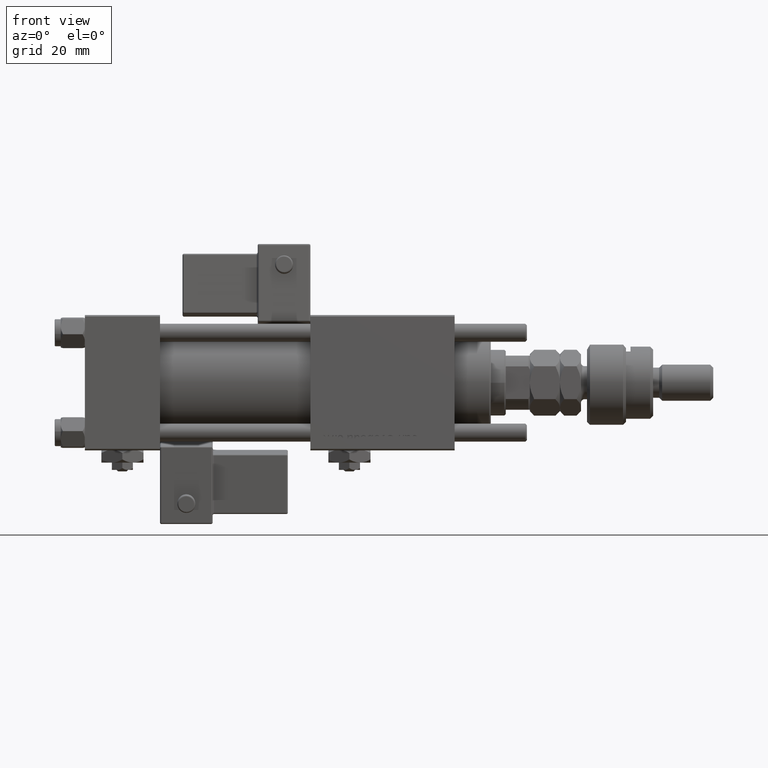
[diagram: clean part render]
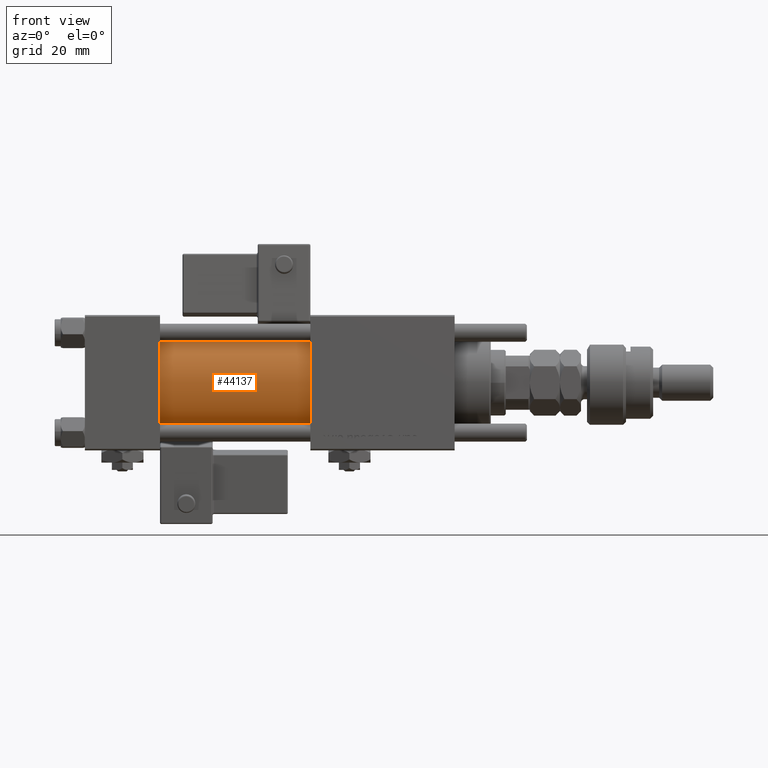
[diagram: same view with one face highlighted and labeled with its STEP entity id]
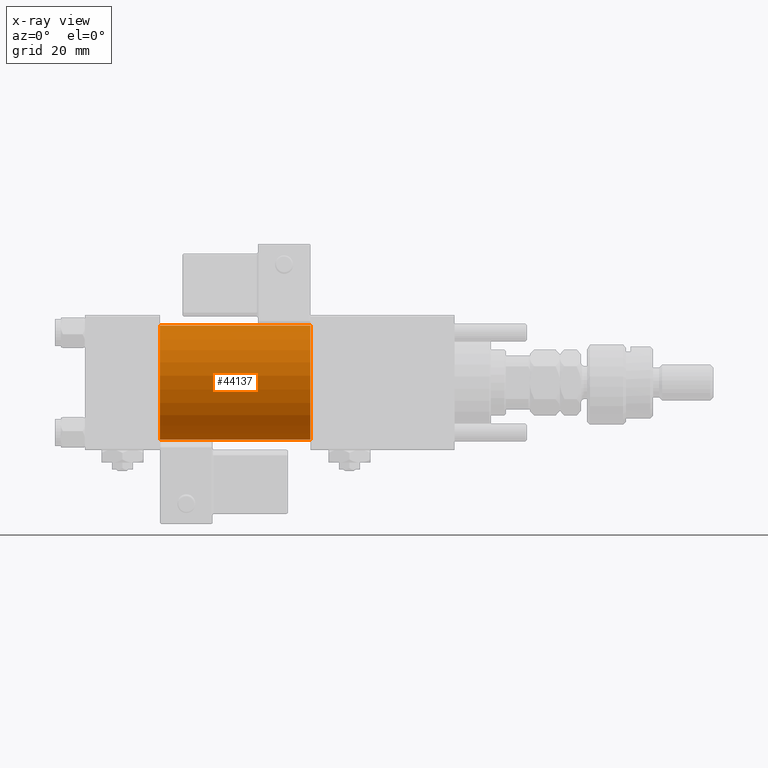
[diagram: x-ray of the same camera — body ghosted, the highlighted face saturated]
A machine part, front view. The second image highlights one B-rep face of the part: STEP entity #44137.
The next image is the same camera in x-ray: the body ghosted, the highlighted face saturated — about 0% of this face is hidden behind the body in this view.
In plain terms, the highlighted cylindrical surface (partial cylindrical patch) has radius 19 mm, axis along (-1, -0, -0).
Its self-contained STEP definition (entity closure, byte-faithful):
#1574 = DIRECTION ( 'NONE',  ( 0.000000000000000000, 0.000000000000000000, -1.000000000000000000 ) ) ;
#2967 = DIRECTION ( 'NONE',  ( -1.000000000000000000, -0.000000000000000000, -0.000000000000000000 ) ) ;
#3882 = LINE ( 'NONE', #57533, #42287 ) ;
#4429 = ORIENTED_EDGE ( 'NONE', *, *, #54163, .T. ) ;
#6085 = CARTESIAN_POINT ( 'NONE',  ( 25.00000000000000000, -2.752562955852396712E-16, -19.00000000000000000 ) ) ;
#7186 = CARTESIAN_POINT ( 'NONE',  ( 75.00000000000001421, -2.602085213965210642E-15, 19.00000000000000000 ) ) ;
#7500 = CYLINDRICAL_SURFACE ( 'NONE', #7809, 19.00000000000000000 ) ;
#7726 = CARTESIAN_POINT ( 'NONE',  ( 75.00000000000001421, -2.602085213965210642E-15, 0.000000000000000000 ) ) ;
#7809 = AXIS2_PLACEMENT_3D ( 'NONE', #27196, #57876, #28139 ) ;
#8727 = DIRECTION ( 'NONE',  ( -1.000000000000000000, -0.000000000000000000, -0.000000000000000000 ) ) ;
#10953 = EDGE_CURVE ( 'NONE', #32318, #48181, #18121, .T. ) ;
#11223 = DIRECTION ( 'NONE',  ( 1.000000000000000000, -0.000000000000000000, 0.000000000000000000 ) ) ;
#16496 = VERTEX_POINT ( 'NONE', #6085 ) ;
#16767 = CARTESIAN_POINT ( 'NONE',  ( 75.00000000000001421, -2.602085213965210642E-15, 19.00000000000000000 ) ) ;
#17923 = ORIENTED_EDGE ( 'NONE', *, *, #10953, .T. ) ;
#18121 = LINE ( 'NONE', #7186, #43088 ) ;
#20606 = DIRECTION ( 'NONE',  ( 0.000000000000000000, 0.000000000000000000, 1.000000000000000000 ) ) ;
#22516 = CIRCLE ( 'NONE', #41086, 19.00000000000000000 ) ;
#22596 = DIRECTION ( 'NONE',  ( 1.000000000000000000, 0.000000000000000000, 0.000000000000000000 ) ) ;
#23520 = CARTESIAN_POINT ( 'NONE',  ( 75.00000000000001421, -2.752562955852396712E-16, -19.00000000000000000 ) ) ;
#23869 = ORIENTED_EDGE ( 'NONE', *, *, #59209, .F. ) ;
#27196 = CARTESIAN_POINT ( 'NONE',  ( 75.00000000000001421, -2.602085213965210642E-15, 0.000000000000000000 ) ) ;
#28139 = DIRECTION ( 'NONE',  ( 0.000000000000000000, 0.000000000000000000, 1.000000000000000000 ) ) ;
#29672 = EDGE_LOOP ( 'NONE', ( #23869, #60633, #17923, #4429 ) ) ;
#29673 = CARTESIAN_POINT ( 'NONE',  ( 25.00000000000000000, -2.602085213965210642E-15, 0.000000000000000000 ) ) ;
#32318 = VERTEX_POINT ( 'NONE', #16767 ) ;
#41086 = AXIS2_PLACEMENT_3D ( 'NONE', #29673, #11223, #20606 ) ;
#42287 = VECTOR ( 'NONE', #8727, 1000.000000000000000 ) ;
#43088 = VECTOR ( 'NONE', #2967, 1000.000000000000000 ) ;
#44137 = ADVANCED_FACE ( 'NONE', ( #51768 ), #7500, .T. ) ;
#48181 = VERTEX_POINT ( 'NONE', #55759 ) ;
#51768 = FACE_OUTER_BOUND ( 'NONE', #29672, .T. ) ;
#54163 = EDGE_CURVE ( 'NONE', #48181, #16496, #22516, .T. ) ;
#54853 = AXIS2_PLACEMENT_3D ( 'NONE', #7726, #22596, #1574 ) ;
#55759 = CARTESIAN_POINT ( 'NONE',  ( 25.00000000000000000, -2.602085213965210642E-15, 19.00000000000000000 ) ) ;
#55878 = CIRCLE ( 'NONE', #54853, 19.00000000000000000 ) ;
#55996 = VERTEX_POINT ( 'NONE', #23520 ) ;
#57533 = CARTESIAN_POINT ( 'NONE',  ( 75.00000000000001421, -2.752562955852396712E-16, -19.00000000000000000 ) ) ;
#57876 = DIRECTION ( 'NONE',  ( -1.000000000000000000, -0.000000000000000000, -0.000000000000000000 ) ) ;
#59209 = EDGE_CURVE ( 'NONE', #55996, #16496, #3882, .T. ) ;
#60633 = ORIENTED_EDGE ( 'NONE', *, *, #63273, .F. ) ;
#63273 = EDGE_CURVE ( 'NONE', #32318, #55996, #55878, .T. ) ;